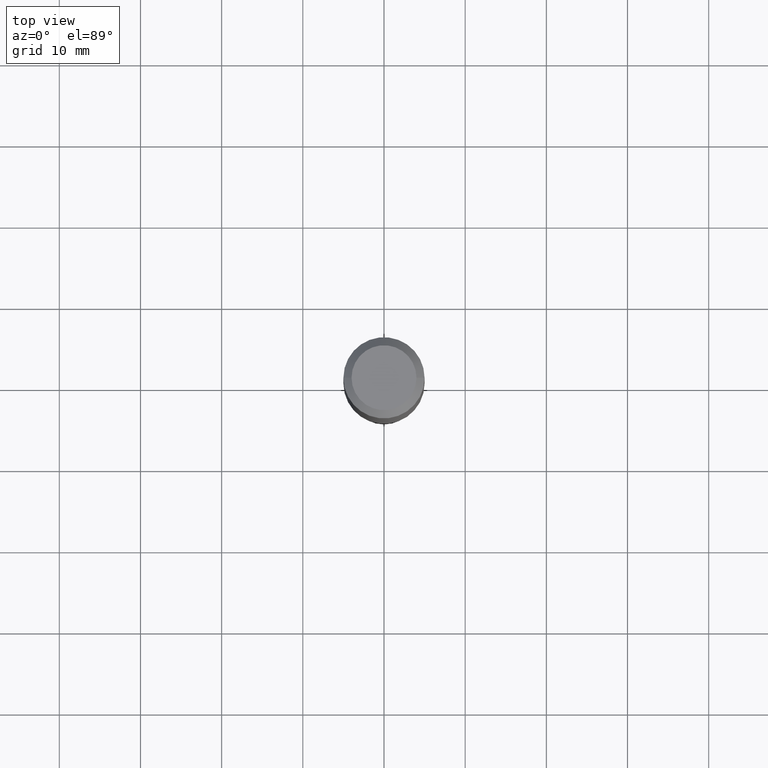
[diagram: clean part render]
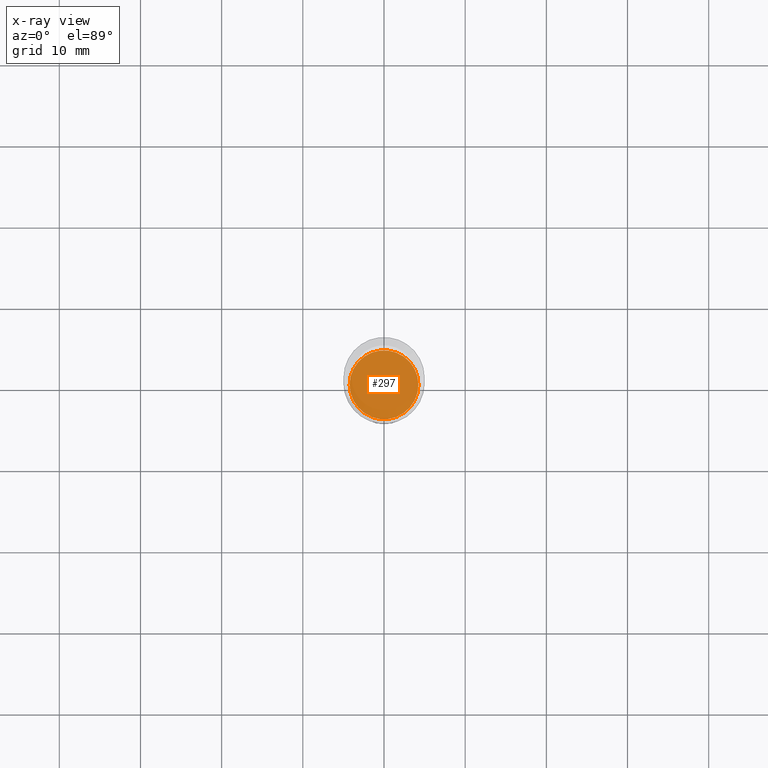
[diagram: x-ray — body ghosted, one internal face saturated and labeled with its STEP entity id]
A machine part, top view, then the same camera in x-ray: the body is ghosted and one INTERNAL B-rep face — a face not visible from any outside direction — is saturated and labeled: STEP entity #297.
In plain terms, the highlighted planar face has unit normal (-0, 0, 1).
Its self-contained STEP definition (entity closure, byte-faithful):
#4 = CIRCLE ( 'NONE', #347, 0.1668000000000000038 ) ;
#39 = VERTEX_POINT ( 'NONE', #466 ) ;
#79 = FACE_OUTER_BOUND ( 'NONE', #316, .T. ) ;
#113 = CARTESIAN_POINT ( 'NONE',  ( 2.588108950241720842E-29, -1.019752136162691187E-14, -1.988099999999999978 ) ) ;
#122 = ORIENTED_EDGE ( 'NONE', *, *, #146, .F. ) ;
#146 = EDGE_CURVE ( 'NONE', #190, #39, #177, .T. ) ;
#154 = AXIS2_PLACEMENT_3D ( 'NONE', #113, #226, #219 ) ;
#177 = CIRCLE ( 'NONE', #257, 0.1668000000000000038 ) ;
#190 = VERTEX_POINT ( 'NONE', #240 ) ;
#191 = DIRECTION ( 'NONE',  ( 1.000000000000000000, -6.982962677686265922E-15, 0.000000000000000000 ) ) ;
#202 = DIRECTION ( 'NONE',  ( -2.445468806185136597E-29, 3.491481338843145583E-15, 1.000000000000000000 ) ) ;
#219 = DIRECTION ( 'NONE',  ( 1.000000000000000000, -6.982962677686265922E-15, 4.876176775795935793E-29 ) ) ;
#226 = DIRECTION ( 'NONE',  ( -2.438088387897960049E-29, 3.491481338843145188E-15, 1.000000000000000000 ) ) ;
#239 = DIRECTION ( 'NONE',  ( 1.000000000000000000, -6.982962677686265922E-15, 0.000000000000000000 ) ) ;
#240 = CARTESIAN_POINT ( 'NONE',  ( -0.1668000000000000038, -5.753579539332099070E-15, -1.988099999999999978 ) ) ;
#246 = CARTESIAN_POINT ( 'NONE',  ( 4.861836533576670348E-29, -6.941414049754057803E-15, -1.988099999999999978 ) ) ;
#257 = AXIS2_PLACEMENT_3D ( 'NONE', #246, #202, #191 ) ;
#297 = ADVANCED_FACE ( 'NONE', ( #79 ), #298, .F. ) ;
#298 = PLANE ( 'NONE',  #154 ) ;
#316 = EDGE_LOOP ( 'NONE', ( #479, #122 ) ) ;
#337 = DIRECTION ( 'NONE',  ( -2.445468806185136597E-29, 3.491481338843145583E-15, 1.000000000000000000 ) ) ;
#347 = AXIS2_PLACEMENT_3D ( 'NONE', #448, #337, #239 ) ;
#398 = EDGE_CURVE ( 'NONE', #39, #190, #4, .T. ) ;
#448 = CARTESIAN_POINT ( 'NONE',  ( 4.861836533576670348E-29, -6.941414049754057803E-15, -1.988099999999999978 ) ) ;
#466 = CARTESIAN_POINT ( 'NONE',  ( 0.1668000000000000038, -8.106172224392127582E-15, -1.988099999999999978 ) ) ;
#479 = ORIENTED_EDGE ( 'NONE', *, *, #398, .F. ) ;